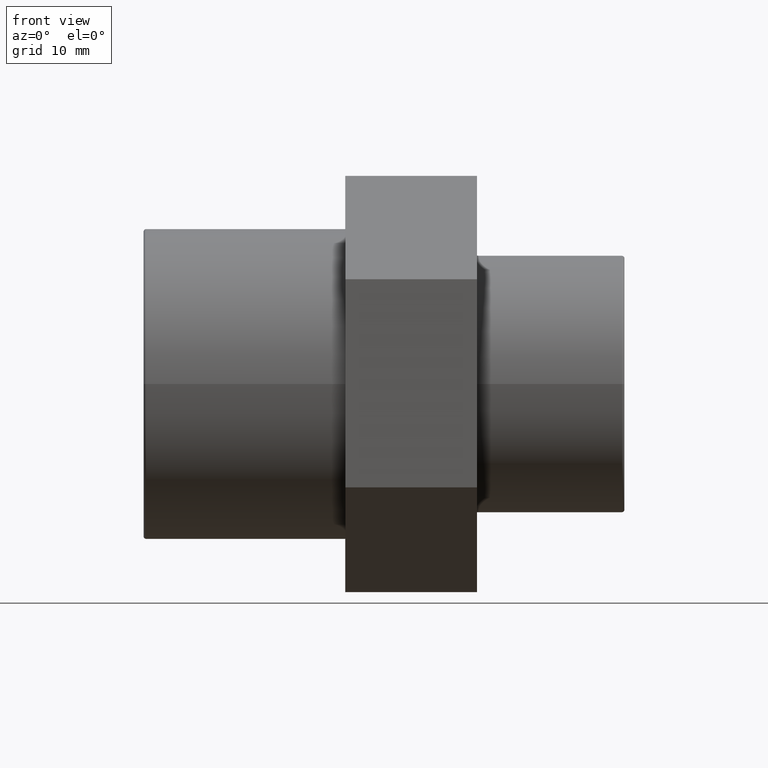
[diagram: clean part render]
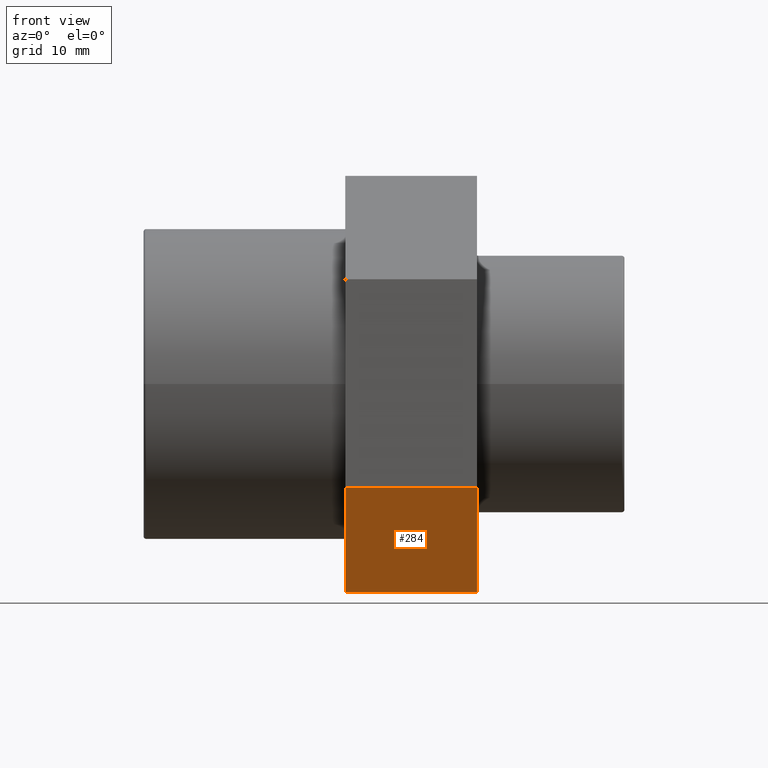
[diagram: same view with one face highlighted and labeled with its STEP entity id]
A machine part, front view. The second image highlights one B-rep face of the part: STEP entity #284.
In plain terms, the highlighted planar face has unit normal (0, -0.5031, -0.8642).
Its self-contained STEP definition (entity closure, byte-faithful):
#57=FACE_OUTER_BOUND('',#78,.T.);
#78=EDGE_LOOP('',(#220,#221,#222,#223));
#113=LINE('',#437,#131);
#121=LINE('',#455,#139);
#124=LINE('',#460,#142);
#125=LINE('',#461,#143);
#131=VECTOR('',#345,17.);
#139=VECTOR('',#359,17.);
#142=VECTOR('',#364,26.8467875173176);
#143=VECTOR('',#365,26.8467875173176);
#146=VERTEX_POINT('',#430);
#149=VERTEX_POINT('',#435);
#155=VERTEX_POINT('',#452);
#156=VERTEX_POINT('',#454);
#175=EDGE_CURVE('',#149,#146,#113,.T.);
#183=EDGE_CURVE('',#156,#155,#121,.T.);
#186=EDGE_CURVE('',#155,#146,#124,.T.);
#187=EDGE_CURVE('',#149,#156,#125,.T.);
#220=ORIENTED_EDGE('',*,*,#186,.T.);
#221=ORIENTED_EDGE('',*,*,#175,.F.);
#222=ORIENTED_EDGE('',*,*,#187,.T.);
#223=ORIENTED_EDGE('',*,*,#183,.T.);
#272=PLANE('',#307);
#284=ADVANCED_FACE('',(#57),#272,.T.);
#307=AXIS2_PLACEMENT_3D('',#459,#362,#363);
#345=DIRECTION('',(1.,6.9661052525499E-16,0.));
#359=DIRECTION('',(1.,6.9661052525499E-16,0.));
#362=DIRECTION('center_axis',(3.50486425672891E-16,-0.503131108368766,-0.864210094705921));
#363=DIRECTION('ref_axis',(-6.21724893790088E-16,0.864210094705921,-0.503131108368766));
#364=DIRECTION('',(5.82093669449841E-16,-0.864210094705921,0.503131108368766));
#365=DIRECTION('',(-5.82093669449841E-16,0.864210094705921,-0.503131108368766));
#430=CARTESIAN_POINT('',(12.,-23.2984306610192,-13.3391577220483));
#435=CARTESIAN_POINT('',(-5.,-23.2984306610192,-13.3391577220483));
#437=CARTESIAN_POINT('',(-5.,-23.2984306610192,-13.3391577220483));
#452=CARTESIAN_POINT('',(12.,-0.0971658781284168,-26.8466116817771));
#454=CARTESIAN_POINT('',(-5.00000000000001,-0.0971658781284286,-26.8466116817771));
#455=CARTESIAN_POINT('',(-5.00000000000001,-0.0971658781284286,-26.8466116817771));
#459=CARTESIAN_POINT('Origin',(-5.,-23.2984306610192,-13.3391577220483));
#460=CARTESIAN_POINT('',(12.,-17.4981144652965,-16.7160212119805));
#461=CARTESIAN_POINT('',(-5.,-23.2984306610192,-13.3391577220483));